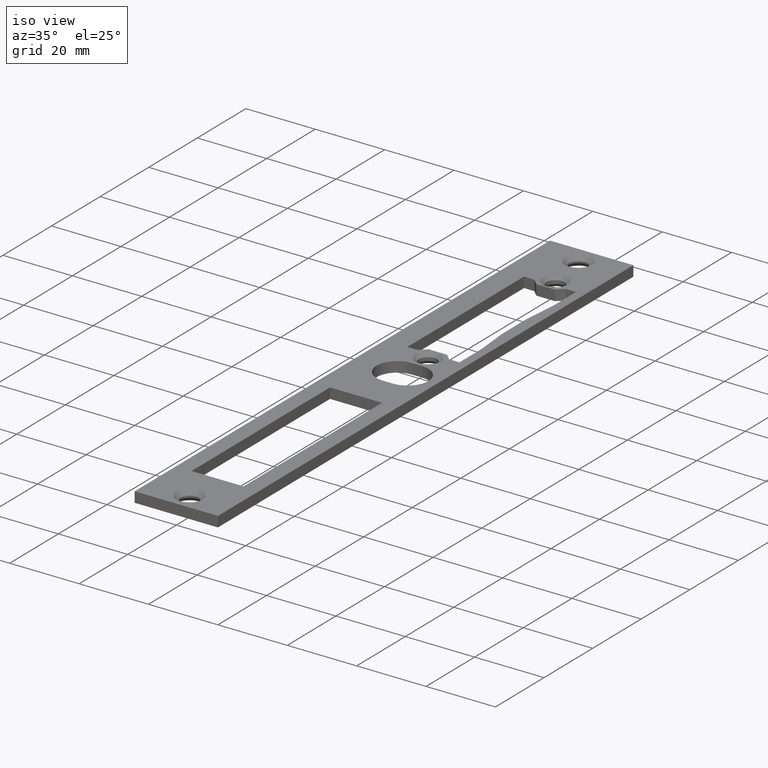
[diagram: clean part render]
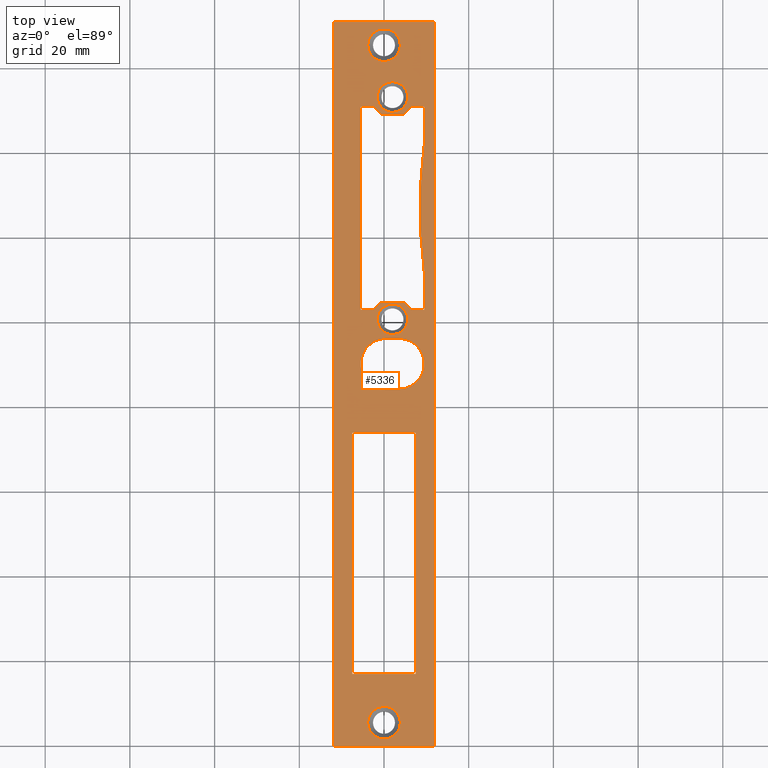
[diagram: tour spotlight — one face highlighted and labeled with its STEP entity id]
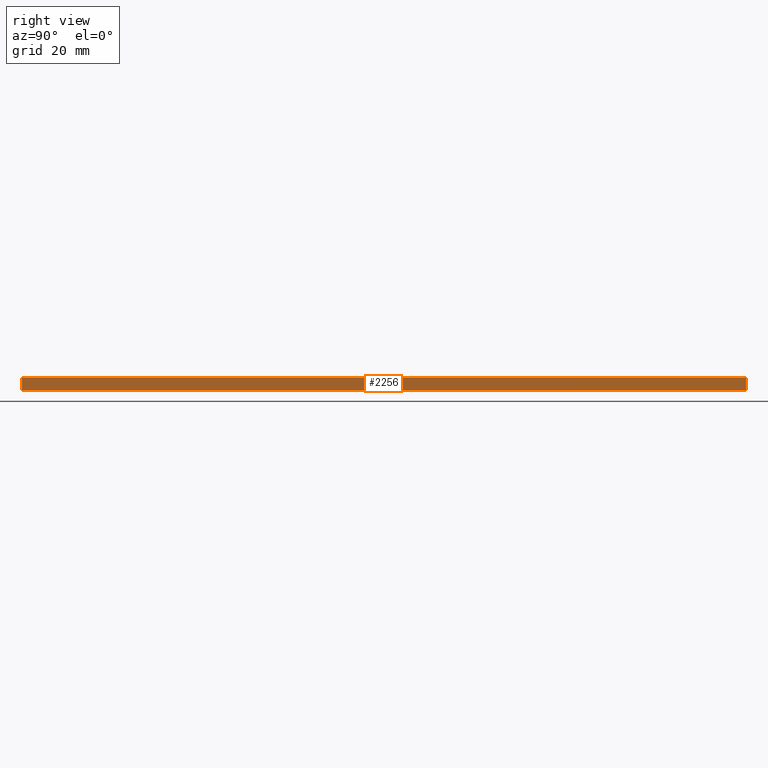
[diagram: tour spotlight — one face highlighted and labeled with its STEP entity id]
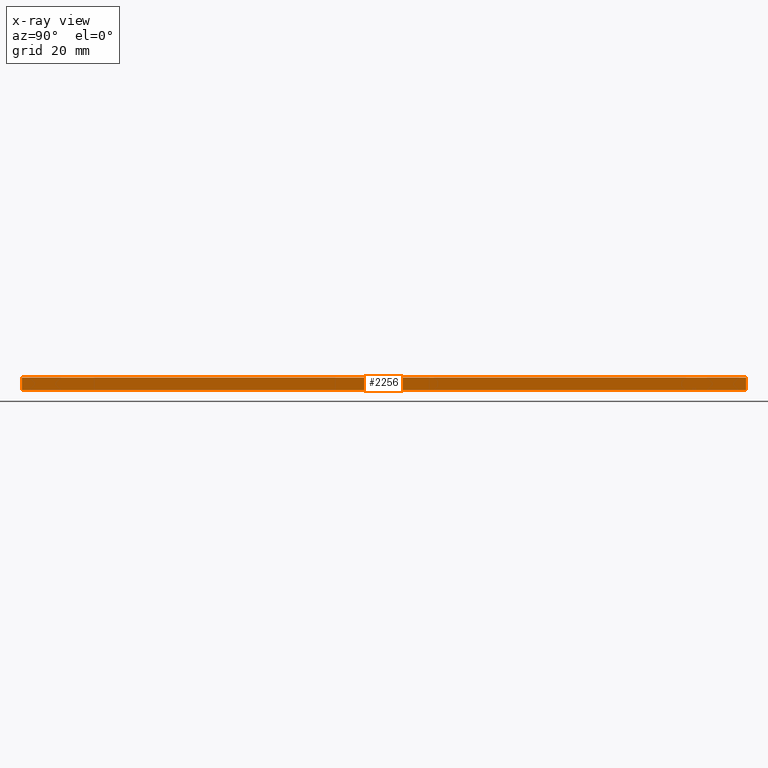
[diagram: x-ray of the same camera — body ghosted, this tour face saturated]
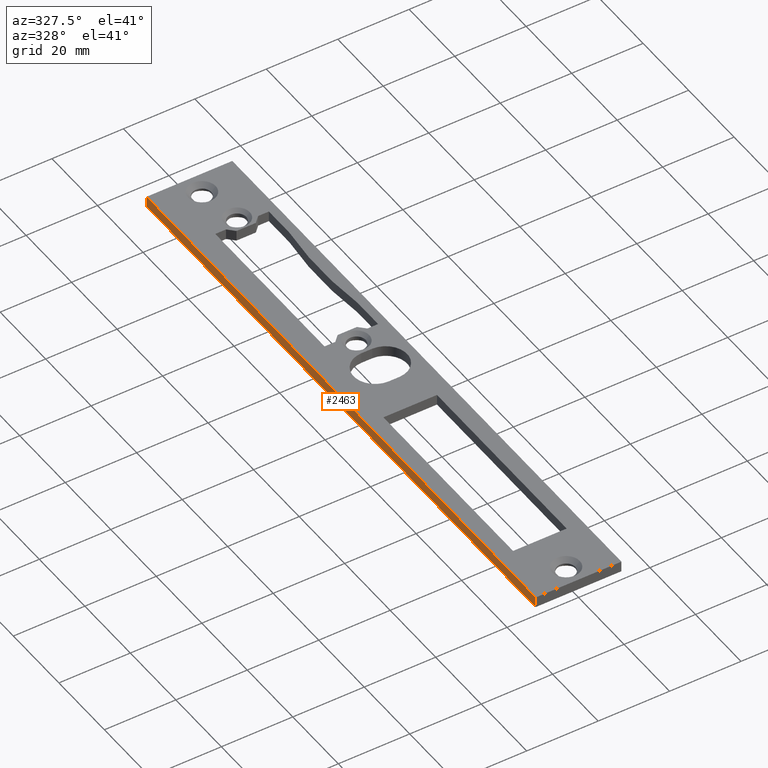
[diagram: tour spotlight — one face highlighted and labeled with its STEP entity id]
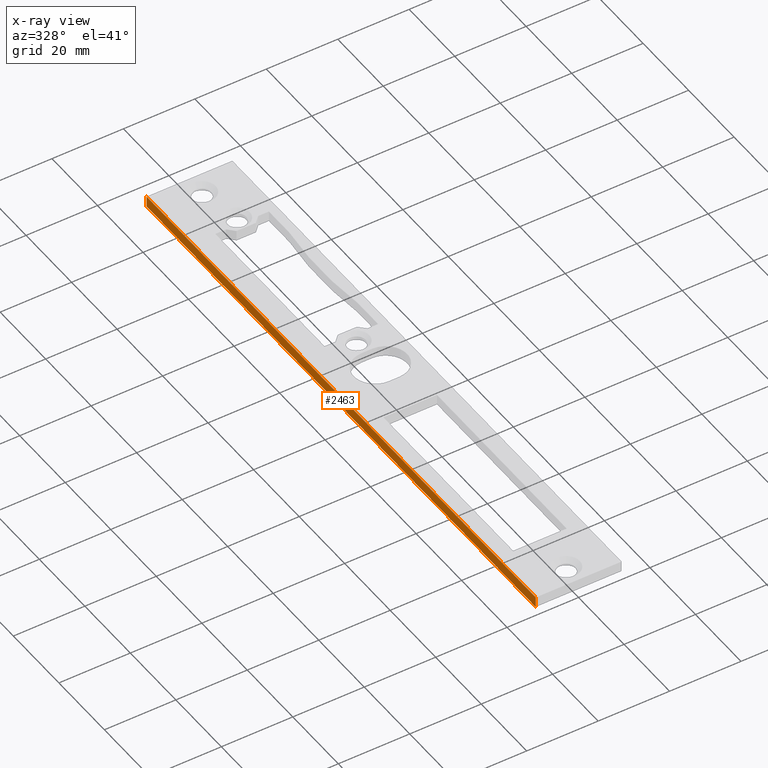
[diagram: x-ray of the same camera — body ghosted, this tour face saturated]
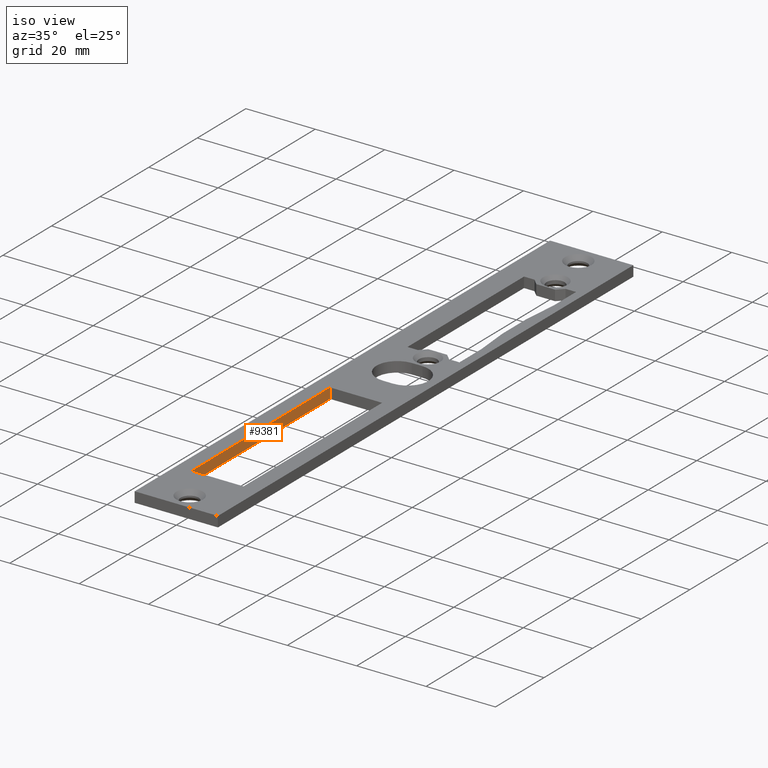
[diagram: tour spotlight — one face highlighted and labeled with its STEP entity id]
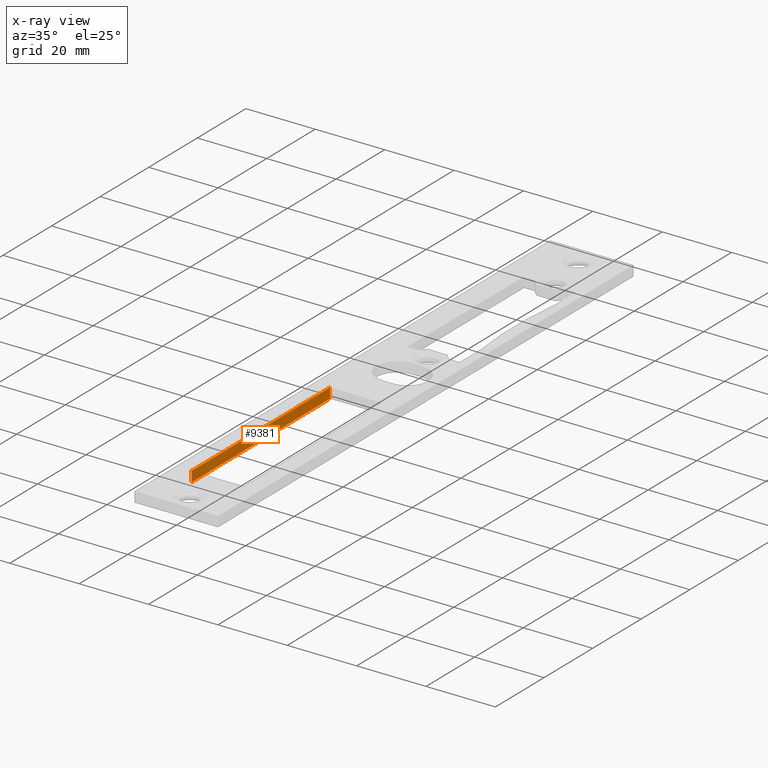
[diagram: x-ray of the same camera — body ghosted, this tour face saturated]
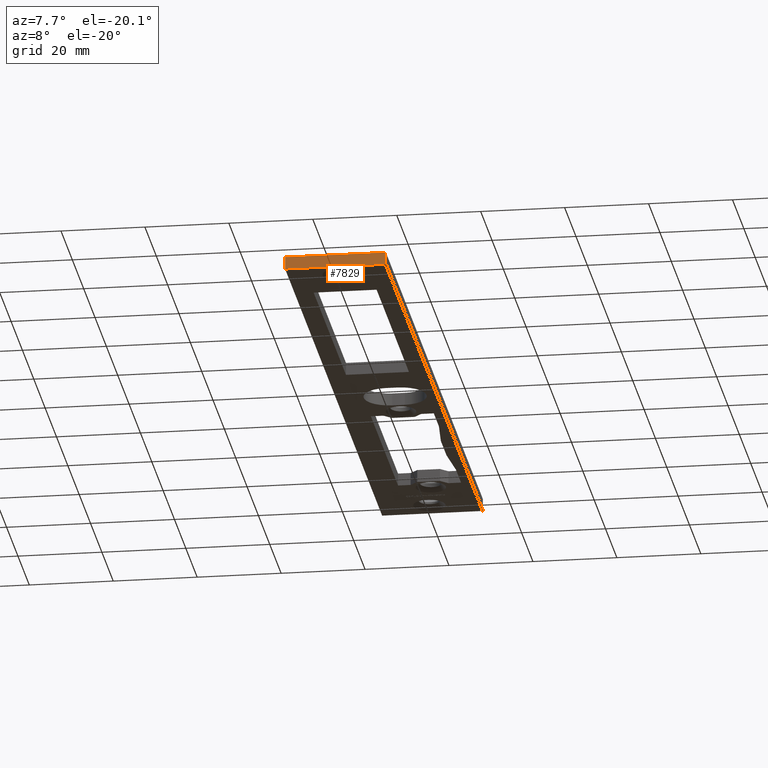
[diagram: tour spotlight — one face highlighted and labeled with its STEP entity id]
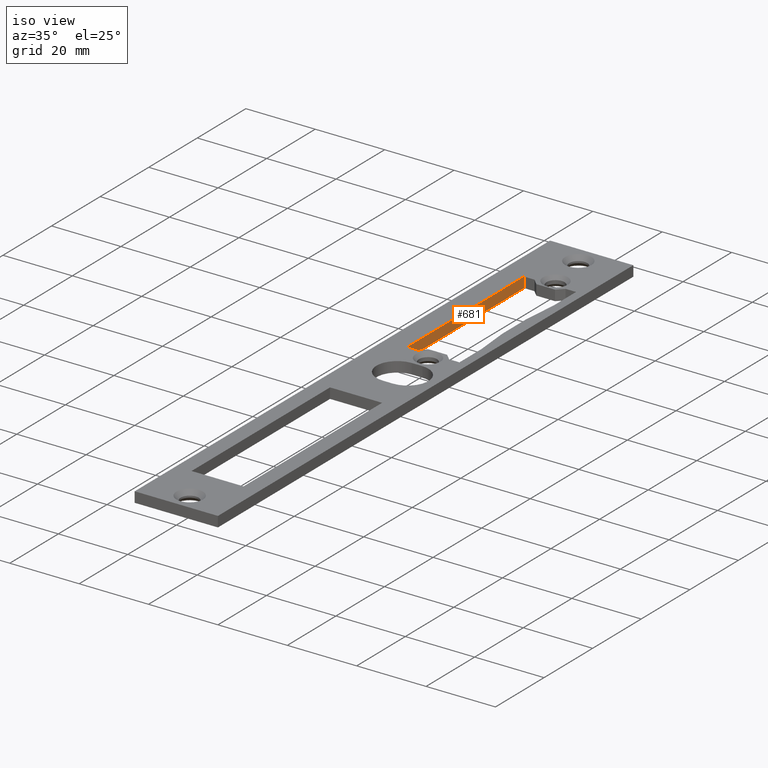
[diagram: tour spotlight — one face highlighted and labeled with its STEP entity id]
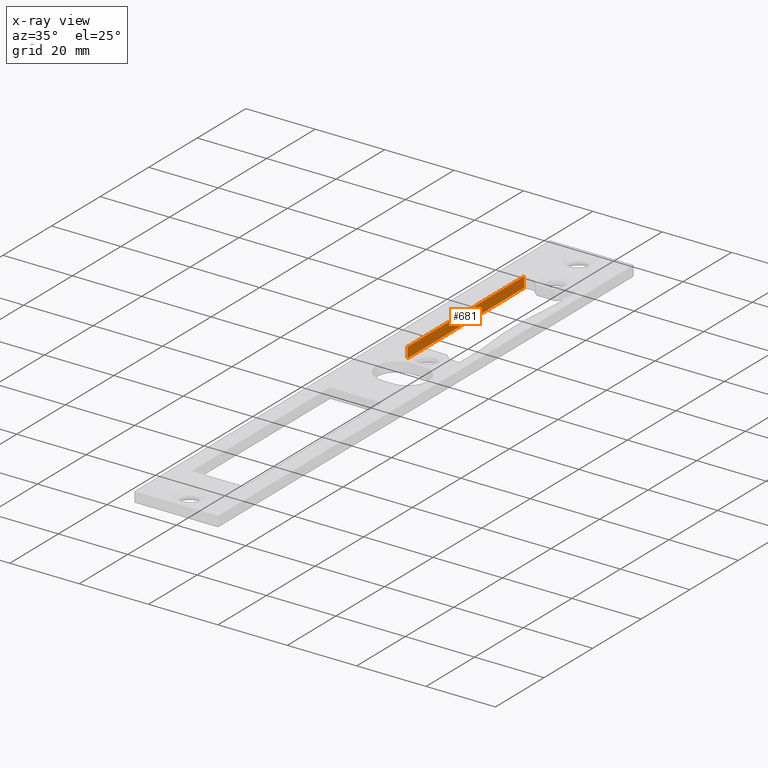
[diagram: x-ray of the same camera — body ghosted, this tour face saturated]
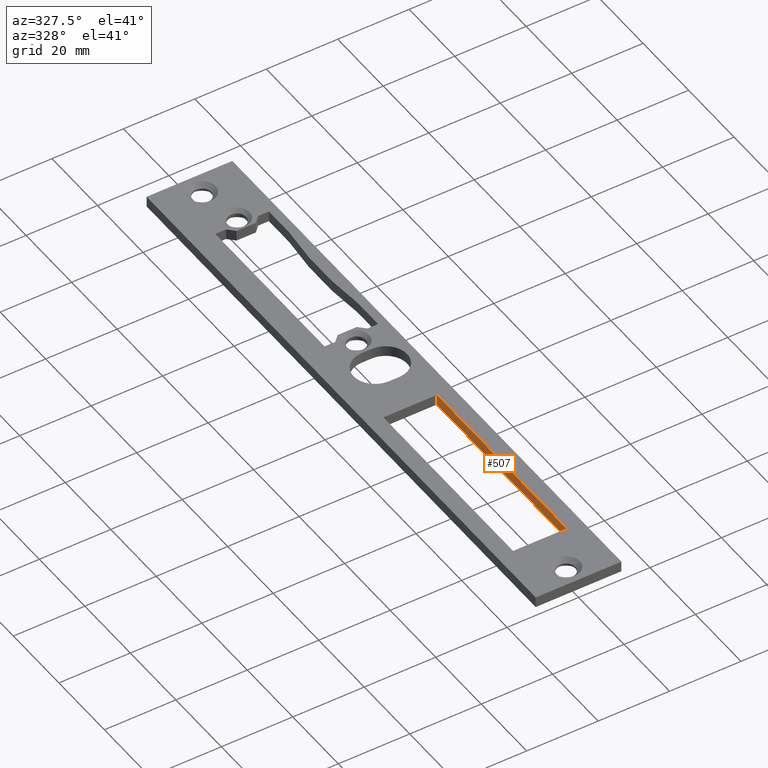
[diagram: tour spotlight — one face highlighted and labeled with its STEP entity id]
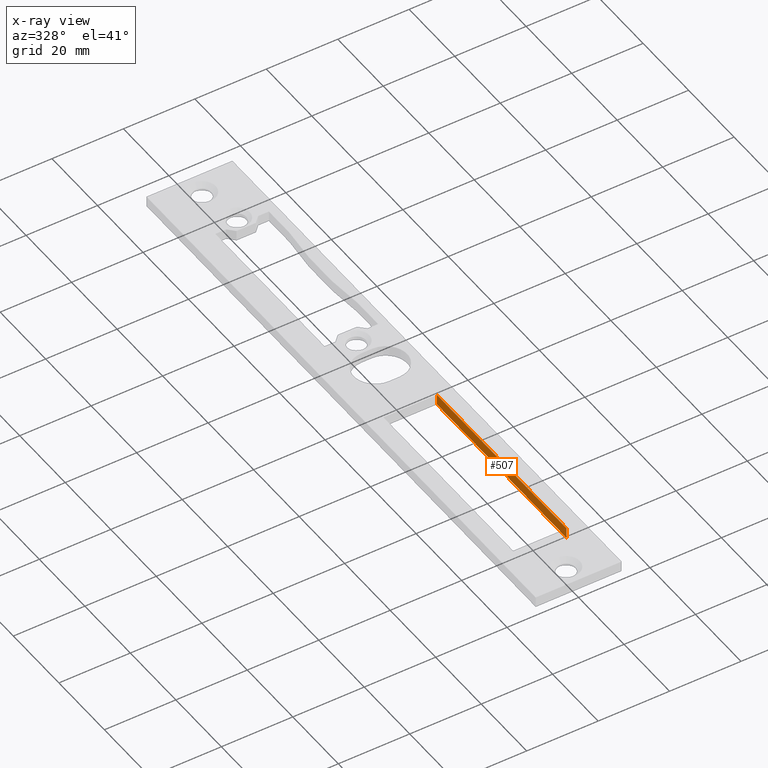
[diagram: x-ray of the same camera — body ghosted, this tour face saturated]
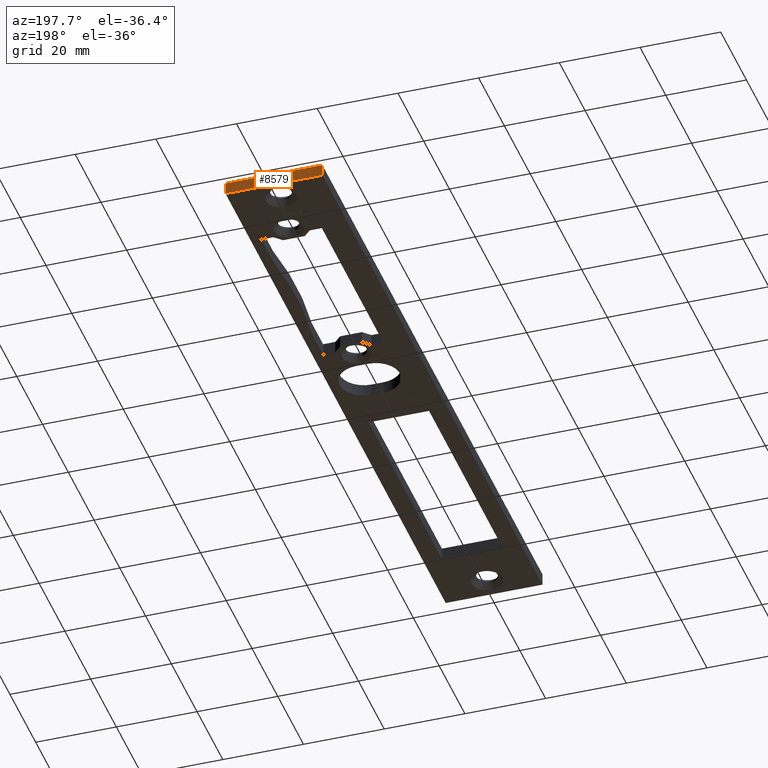
[diagram: tour spotlight — one face highlighted and labeled with its STEP entity id]
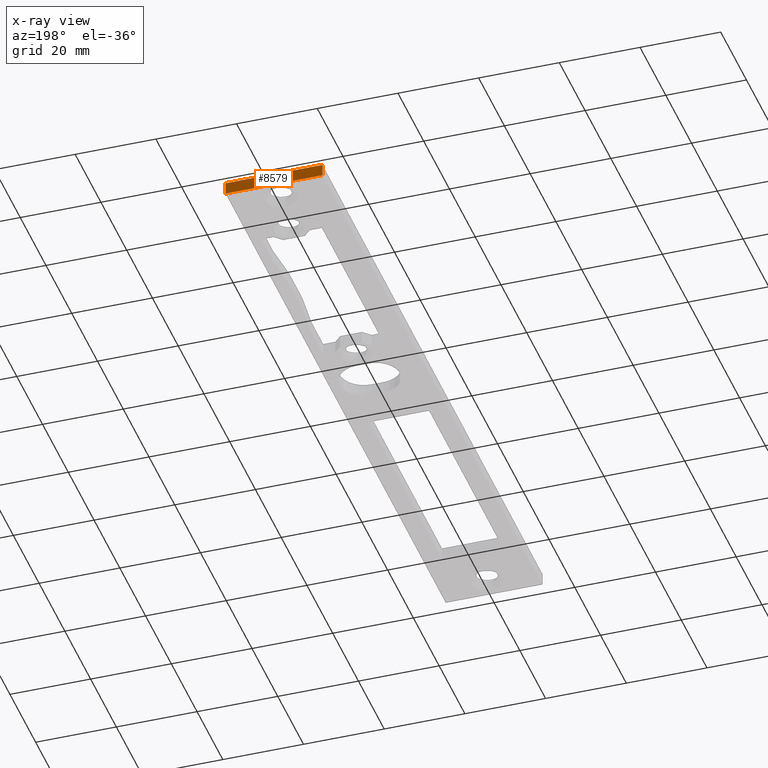
[diagram: x-ray of the same camera — body ghosted, this tour face saturated]
A machine part: a face-by-face anatomy tour. The part has 229 B-rep faces; the first image is the clean iso view, then the 8 largest visible faces are spotlighted one at a time (largest first), each with its STEP entity span.

Face 1 — top view, entity #5336. In plain terms, the highlighted planar face has unit normal (-0, 0, 1).
Definition (entity closure, byte-faithful):
#9 = DIRECTION ( 'NONE',  ( 0.000000000000000000, -0.000000000000000000, -1.000000000000000000 ) ) ;
#22 = AXIS2_PLACEMENT_3D ( 'NONE', #10505, #652, #9553 ) ;
#136 = CARTESIAN_POINT ( 'NONE',  ( -5.499999999999979572, 151.0000000000000284, 3.000000000000000888 ) ) ;
#141 = ORIENTED_EDGE ( 'NONE', *, *, #10026, .T. ) ;
#155 = DIRECTION ( 'NONE',  ( -0.000000000000000000, 0.000000000000000000, 1.000000000000000000 ) ) ;
#209 = VECTOR ( 'NONE', #10921, 1000.000000000000000 ) ;
#212 = LINE ( 'NONE', #4063, #762 ) ;
#229 = DIRECTION ( 'NONE',  ( 1.000000000000000000, 0.000000000000000000, 0.000000000000000000 ) ) ;
#294 = CARTESIAN_POINT ( 'NONE',  ( 0.000000000000000000, 104.7999999999999829, 3.000000000000000888 ) ) ;
#445 = CIRCLE ( 'NONE', #22, 5.999999999999991118 ) ;
#462 = ORIENTED_EDGE ( 'NONE', *, *, #5039, .F. ) ;
#474 = CIRCLE ( 'NONE', #7642, 3.599999999999992095 ) ;
#652 = DIRECTION ( 'NONE',  ( -0.000000000000000000, 0.000000000000000000, 1.000000000000000000 ) ) ;
#762 = VECTOR ( 'NONE', #2241, 1000.000000000000000 ) ;
#783 = LINE ( 'NONE', #1004, #1768 ) ;
#837 = CARTESIAN_POINT ( 'NONE',  ( 7.500000000000000000, 73.99999999999994316, 3.000000000000000888 ) ) ;
#893 = CARTESIAN_POINT ( 'NONE',  ( -72.25000000000000000, 72.24999999999940314, 3.000000000000000888 ) ) ;
#951 = VERTEX_POINT ( 'NONE', #1247 ) ;
#967 = CARTESIAN_POINT ( 'NONE',  ( 0.000000000000000000, 0.000000000000000000, 3.000000000000000888 ) ) ;
#983 = EDGE_CURVE ( 'NONE', #4644, #4921, #2457, .T. ) ;
#1004 = CARTESIAN_POINT ( 'NONE',  ( 0.000000000000000000, 96.25000000000000000, 3.000000000000000888 ) ) ;
#1017 = CARTESIAN_POINT ( 'NONE',  ( -2.499999999999979572, 151.0000000000000284, 3.000000000000000888 ) ) ;
#1027 = LINE ( 'NONE', #893, #7646 ) ;
#1082 = CARTESIAN_POINT ( 'NONE',  ( 9.500000000000019540, 111.9999999999999858, 3.000000000000000888 ) ) ;
#1112 = VERTEX_POINT ( 'NONE', #10268 ) ;
#1126 = ORIENTED_EDGE ( 'NONE', *, *, #4900, .F. ) ;
#1187 = EDGE_CURVE ( 'NONE', #7249, #9455, #8838, .T. ) ;
#1234 = CARTESIAN_POINT ( 'NONE',  ( -5.499999999999979572, 102.9999999999999858, 3.000000000000000888 ) ) ;
#1247 = CARTESIAN_POINT ( 'NONE',  ( -2.499999999999979572, 102.9999999999999716, 3.000000000000000888 ) ) ;
#1324 = CARTESIAN_POINT ( 'NONE',  ( 74.25000000000001421, 74.24999999999944578, 3.000000000000000888 ) ) ;
#1419 = DIRECTION ( 'NONE',  ( 0.000000000000000000, -0.000000000000000000, -1.000000000000000000 ) ) ;
#1430 = CARTESIAN_POINT ( 'NONE',  ( 3.850000000000025402, 5.500000000000000000, 3.000000000000000888 ) ) ;
#1492 = DIRECTION ( 'NONE',  ( -1.000000000000000000, 0.000000000000000000, 0.000000000000000000 ) ) ;
#1497 = EDGE_CURVE ( 'NONE', #9953, #1112, #783, .T. ) ;
#1591 = ORIENTED_EDGE ( 'NONE', *, *, #4746, .F. ) ;
#1725 = EDGE_CURVE ( 'NONE', #11207, #11121, #10664, .T. ) ;
#1737 = EDGE_CURVE ( 'NONE', #8115, #10535, #6703, .T. ) ;
#1768 = VECTOR ( 'NONE', #5365, 1000.000000000000000 ) ;
#1772 = ORIENTED_EDGE ( 'NONE', *, *, #10639, .T. ) ;
#1824 = EDGE_CURVE ( 'NONE', #5321, #9465, #4584, .T. ) ;
#1885 = CARTESIAN_POINT ( 'NONE',  ( 0.000000000000000000, 151.0000000000000284, 3.000000000000000888 ) ) ;
#1891 = DIRECTION ( 'NONE',  ( 1.000000000000000000, 0.000000000000000000, 0.000000000000000000 ) ) ;
#1907 = EDGE_LOOP ( 'NONE', ( #7168, #462, #6838, #3657, #5136, #3250, #11012, #6559, #10292, #9429, #7619, #3893, #11220, #9304 ) ) ;
#1958 = EDGE_CURVE ( 'NONE', #4269, #4269, #7678, .T. ) ;
#2046 = LINE ( 'NONE', #2075, #9525 ) ;
#2058 = VECTOR ( 'NONE', #7211, 1000.000000000000000 ) ;
#2075 = CARTESIAN_POINT ( 'NONE',  ( 0.000000000000000000, 149.2000000000000171, 3.000000000000000888 ) ) ;
#2118 = EDGE_LOOP ( 'NONE', ( #4045 ) ) ;
#2164 = LINE ( 'NONE', #4295, #8662 ) ;
#2193 = CARTESIAN_POINT ( 'NONE',  ( -12.00000000000003375, 171.0000000000000000, 3.000000000000000888 ) ) ;
#2241 = DIRECTION ( 'NONE',  ( -1.217349807703023841E-16, -1.000000000000000000, 0.000000000000000000 ) ) ;
#2385 = VERTEX_POINT ( 'NONE', #5875 ) ;
#2429 = DIRECTION ( 'NONE',  ( 1.000000000000000000, 0.000000000000000000, 0.000000000000000000 ) ) ;
#2457 = LINE ( 'NONE', #1324, #4128 ) ;
#2511 = ORIENTED_EDGE ( 'NONE', *, *, #3553, .F. ) ;
#2520 = EDGE_CURVE ( 'NONE', #2783, #11340, #8230, .T. ) ;
#2570 = EDGE_CURVE ( 'NONE', #10490, #9287, #4156, .T. ) ;
#2607 = VECTOR ( 'NONE', #10855, 1000.000000000000114 ) ;
#2624 = VECTOR ( 'NONE', #5317, 1000.000000000000000 ) ;
#2631 = FACE_BOUND ( 'NONE', #5664, .T. ) ;
#2738 = EDGE_CURVE ( 'NONE', #4921, #5321, #2164, .T. ) ;
#2759 = DIRECTION ( 'NONE',  ( -0.000000000000000000, 0.000000000000000000, 1.000000000000000000 ) ) ;
#2783 = VERTEX_POINT ( 'NONE', #9605 ) ;
#2896 = VERTEX_POINT ( 'NONE', #9839 ) ;
#2948 = CARTESIAN_POINT ( 'NONE',  ( 3.295974604355933479E-14, 5.500000000000000000, 3.000000000000000888 ) ) ;
#3035 = CIRCLE ( 'NONE', #11403, 5.999999999999991118 ) ;
#3042 = EDGE_LOOP ( 'NONE', ( #6616, #141, #6260, #6589 ) ) ;
#3074 = DIRECTION ( 'NONE',  ( -0.7071067811865447972, 0.7071067811865502373, 0.000000000000000000 ) ) ;
#3089 = EDGE_CURVE ( 'NONE', #6276, #2385, #11489, .T. ) ;
#3250 = ORIENTED_EDGE ( 'NONE', *, *, #9745, .F. ) ;
#3276 = VERTEX_POINT ( 'NONE', #11560 ) ;
#3436 = VECTOR ( 'NONE', #6976, 1000.000000000000000 ) ;
#3507 = CARTESIAN_POINT ( 'NONE',  ( 0.000000000000000000, 0.000000000000000000, 3.000000000000000888 ) ) ;
#3543 = CARTESIAN_POINT ( 'NONE',  ( 6.499999999999992006, 151.0000000000000284, 3.000000000000000888 ) ) ;
#3553 = EDGE_CURVE ( 'NONE', #9287, #3276, #212, .T. ) ;
#3579 = CARTESIAN_POINT ( 'NONE',  ( 0.5000000000000107692, 96.25000000000000000, 3.000000000000000888 ) ) ;
#3590 = CARTESIAN_POINT ( 'NONE',  ( -4.764707147349626450E-13, 102.9999999999999432, 3.000000000000000888 ) ) ;
#3657 = ORIENTED_EDGE ( 'NONE', *, *, #2738, .F. ) ;
#3679 = ORIENTED_EDGE ( 'NONE', *, *, #10030, .F. ) ;
#3749 = FACE_BOUND ( 'NONE', #10139, .T. ) ;
#3842 = EDGE_CURVE ( 'NONE', #9953, #4050, #3035, .T. ) ;
#3868 = CARTESIAN_POINT ( 'NONE',  ( 4.700000000000030376, 104.7999999999999829, 3.000000000000000888 ) ) ;
#3893 = ORIENTED_EDGE ( 'NONE', *, *, #2520, .F. ) ;
#3936 = EDGE_CURVE ( 'NONE', #5180, #6276, #6277, .T. ) ;
#4011 = ORIENTED_EDGE ( 'NONE', *, *, #4436, .T. ) ;
#4045 = ORIENTED_EDGE ( 'NONE', *, *, #7836, .T. ) ;
#4050 = VERTEX_POINT ( 'NONE', #8201 ) ;
#4063 = CARTESIAN_POINT ( 'NONE',  ( -7.500000000000007994, 9.130123557772689781E-16, 3.000000000000000888 ) ) ;
#4064 = CARTESIAN_POINT ( 'NONE',  ( -3.230922474006803213E-14, 165.5000000000000000, 3.000000000000000888 ) ) ;
#4066 = CARTESIAN_POINT ( 'NONE',  ( 3.500000000000031086, 84.25000000000001421, 3.000000000000000888 ) ) ;
#4128 = VECTOR ( 'NONE', #3074, 1000.000000000000227 ) ;
#4138 = LINE ( 'NONE', #5545, #2607 ) ;
#4147 = LINE ( 'NONE', #11689, #5127 ) ;
#4156 = LINE ( 'NONE', #10997, #5827 ) ;
#4269 = VERTEX_POINT ( 'NONE', #11284 ) ;
#4295 = CARTESIAN_POINT ( 'NONE',  ( 0.000000000000000000, 151.0000000000000284, 3.000000000000000888 ) ) ;
#4301 = VECTOR ( 'NONE', #5603, 1000.000000000000000 ) ;
#4339 = ORIENTED_EDGE ( 'NONE', *, *, #2570, .F. ) ;
#4408 = DIRECTION ( 'NONE',  ( -1.217349807703023841E-16, 1.000000000000000000, 0.000000000000000000 ) ) ;
#4436 = EDGE_CURVE ( 'NONE', #7362, #7362, #6874, .T. ) ;
#4444 = FACE_OUTER_BOUND ( 'NONE', #3042, .T. ) ;
#4584 = LINE ( 'NONE', #11028, #209 ) ;
#4643 = DIRECTION ( 'NONE',  ( 1.000000000000000000, 0.000000000000000000, 0.000000000000000000 ) ) ;
#4644 = VERTEX_POINT ( 'NONE', #7098 ) ;
#4645 = CARTESIAN_POINT ( 'NONE',  ( 121.5000000000008953, 127.0000000000000000, 3.000000000000000888 ) ) ;
#4656 = EDGE_CURVE ( 'NONE', #2385, #5361, #8123, .T. ) ;
#4746 = EDGE_CURVE ( 'NONE', #2896, #10490, #5170, .T. ) ;
#4763 = AXIS2_PLACEMENT_3D ( 'NONE', #4064, #1419, #5780 ) ;
#4787 = DIRECTION ( 'NONE',  ( 1.000000000000000000, 0.000000000000000000, 0.000000000000000000 ) ) ;
#4900 = EDGE_CURVE ( 'NONE', #4050, #10780, #9946, .T. ) ;
#4921 = VERTEX_POINT ( 'NONE', #1017 ) ;
#5019 = VECTOR ( 'NONE', #229, 1000.000000000000000 ) ;
#5039 = EDGE_CURVE ( 'NONE', #9465, #951, #9815, .T. ) ;
#5127 = VECTOR ( 'NONE', #6299, 1000.000000000000000 ) ;
#5136 = ORIENTED_EDGE ( 'NONE', *, *, #983, .F. ) ;
#5170 = LINE ( 'NONE', #7986, #10378 ) ;
#5180 = VERTEX_POINT ( 'NONE', #10716 ) ;
#5246 = VECTOR ( 'NONE', #6261, 1000.000000000000000 ) ;
#5317 = DIRECTION ( 'NONE',  ( -1.000000000000000000, 0.000000000000000000, 0.000000000000000000 ) ) ;
#5321 = VERTEX_POINT ( 'NONE', #136 ) ;
#5336 = ADVANCED_FACE ( 'NONE', ( #2631, #10944, #9802, #3749, #9513, #11217, #6845, #4444 ), #8200, .T. ) ;
#5361 = VERTEX_POINT ( 'NONE', #5452 ) ;
#5365 = DIRECTION ( 'NONE',  ( 1.000000000000000000, 0.000000000000000000, 0.000000000000000000 ) ) ;
#5452 = CARTESIAN_POINT ( 'NONE',  ( 12.00000000000001066, 0.000000000000000000, 3.000000000000000888 ) ) ;
#5473 = CARTESIAN_POINT ( 'NONE',  ( 2.000000000000019984, 100.7500000000000000, 3.000000000000000888 ) ) ;
#5487 = DIRECTION ( 'NONE',  ( 1.000000000000000000, 0.000000000000000000, 0.000000000000000000 ) ) ;
#5545 = CARTESIAN_POINT ( 'NONE',  ( 54.75000000000004263, 54.74999999999916866, 3.000000000000000888 ) ) ;
#5603 = DIRECTION ( 'NONE',  ( 1.318795625011607498E-16, -1.000000000000000000, 0.000000000000000000 ) ) ;
#5652 = DIRECTION ( 'NONE',  ( 0.7071067811865421326, 0.7071067811865530128, 0.000000000000000000 ) ) ;
#5653 = DIRECTION ( 'NONE',  ( 0.000000000000000000, 0.000000000000000000, 1.000000000000000000 ) ) ;
#5661 = VERTEX_POINT ( 'NONE', #1430 ) ;
#5664 = EDGE_LOOP ( 'NONE', ( #6684 ) ) ;
#5780 = DIRECTION ( 'NONE',  ( 1.000000000000000000, 0.000000000000000000, 0.000000000000000000 ) ) ;
#5804 = CARTESIAN_POINT ( 'NONE',  ( 9.500000000000019540, 102.9999999999999858, 3.000000000000000888 ) ) ;
#5806 = LINE ( 'NONE', #11425, #3436 ) ;
#5827 = VECTOR ( 'NONE', #6500, 1000.000000000000000 ) ;
#5875 = CARTESIAN_POINT ( 'NONE',  ( -12.00000000000001066, 0.000000000000000000, 3.000000000000000888 ) ) ;
#6099 = VERTEX_POINT ( 'NONE', #7884 ) ;
#6242 = VECTOR ( 'NONE', #5652, 999.9999999999998863 ) ;
#6260 = ORIENTED_EDGE ( 'NONE', *, *, #3936, .T. ) ;
#6261 = DIRECTION ( 'NONE',  ( 1.000000000000000000, 0.000000000000000000, 0.000000000000000000 ) ) ;
#6268 = CARTESIAN_POINT ( 'NONE',  ( -0.6999999999999971800, 104.7999999999999829, 3.000000000000000888 ) ) ;
#6276 = VERTEX_POINT ( 'NONE', #2193 ) ;
#6277 = LINE ( 'NONE', #6470, #9928 ) ;
#6299 = DIRECTION ( 'NONE',  ( 0.000000000000000000, 1.000000000000000000, -0.000000000000000000 ) ) ;
#6427 = CARTESIAN_POINT ( 'NONE',  ( 9.500000000000019540, 151.0000000000000284, 3.000000000000000888 ) ) ;
#6470 = CARTESIAN_POINT ( 'NONE',  ( 0.000000000000000000, 171.0000000000000000, 3.000000000000000888 ) ) ;
#6496 = DIRECTION ( 'NONE',  ( -1.000000000000000000, 0.000000000000000000, 0.000000000000000000 ) ) ;
#6500 = DIRECTION ( 'NONE',  ( -1.000000000000000000, 0.000000000000000000, 0.000000000000000000 ) ) ;
#6559 = ORIENTED_EDGE ( 'NONE', *, *, #1725, .F. ) ;
#6589 = ORIENTED_EDGE ( 'NONE', *, *, #3089, .T. ) ;
#6616 = ORIENTED_EDGE ( 'NONE', *, *, #4656, .T. ) ;
#6642 = EDGE_CURVE ( 'NONE', #8115, #11207, #4147, .T. ) ;
#6684 = ORIENTED_EDGE ( 'NONE', *, *, #1958, .T. ) ;
#6689 = VECTOR ( 'NONE', #10887, 1000.000000000000000 ) ;
#6695 = DIRECTION ( 'NONE',  ( 0.000000000000000000, -0.000000000000000000, -1.000000000000000000 ) ) ;
#6703 = CIRCLE ( 'NONE', #7031, 113.0000000000008669 ) ;
#6838 = ORIENTED_EDGE ( 'NONE', *, *, #1824, .F. ) ;
#6845 = FACE_BOUND ( 'NONE', #1907, .T. ) ;
#6874 = CIRCLE ( 'NONE', #4763, 3.849999999999992539 ) ;
#6976 = DIRECTION ( 'NONE',  ( 0.000000000000000000, 1.000000000000000000, -0.000000000000000000 ) ) ;
#7031 = AXIS2_PLACEMENT_3D ( 'NONE', #4645, #5653, #8333 ) ;
#7098 = CARTESIAN_POINT ( 'NONE',  ( -0.6999999999999922951, 149.2000000000000171, 3.000000000000000888 ) ) ;
#7168 = ORIENTED_EDGE ( 'NONE', *, *, #8533, .F. ) ;
#7175 = CARTESIAN_POINT ( 'NONE',  ( 0.000000000000000000, 17.00000000000000000, 3.000000000000000888 ) ) ;
#7191 = CARTESIAN_POINT ( 'NONE',  ( 9.500000000000014211, 142.0000000000000284, 3.000000000000000888 ) ) ;
#7211 = DIRECTION ( 'NONE',  ( 1.000000000000000000, 0.000000000000000000, 0.000000000000000000 ) ) ;
#7229 = VECTOR ( 'NONE', #9948, 1000.000000000000000 ) ;
#7249 = VERTEX_POINT ( 'NONE', #6268 ) ;
#7362 = VERTEX_POINT ( 'NONE', #9506 ) ;
#7367 = LINE ( 'NONE', #8373, #6242 ) ;
#7610 = AXIS2_PLACEMENT_3D ( 'NONE', #8492, #6695, #4787 ) ;
#7619 = ORIENTED_EDGE ( 'NONE', *, *, #11473, .F. ) ;
#7636 = LINE ( 'NONE', #7175, #5246 ) ;
#7642 = AXIS2_PLACEMENT_3D ( 'NONE', #5473, #9, #1891 ) ;
#7646 = VECTOR ( 'NONE', #10149, 1000.000000000000114 ) ;
#7678 = CIRCLE ( 'NONE', #7610, 3.600000000000005862 ) ;
#7701 = CARTESIAN_POINT ( 'NONE',  ( -7.500000000000000000, 73.99999999999994316, 3.000000000000000888 ) ) ;
#7836 = EDGE_CURVE ( 'NONE', #5661, #5661, #10467, .T. ) ;
#7884 = CARTESIAN_POINT ( 'NONE',  ( 5.600000000000012079, 100.7500000000000000, 3.000000000000000888 ) ) ;
#7986 = CARTESIAN_POINT ( 'NONE',  ( 7.500000000000007994, 9.130123557772689781E-16, 3.000000000000000888 ) ) ;
#8115 = VERTEX_POINT ( 'NONE', #7191 ) ;
#8123 = LINE ( 'NONE', #3507, #2058 ) ;
#8200 = PLANE ( 'NONE',  #8298 ) ;
#8201 = CARTESIAN_POINT ( 'NONE',  ( 0.5000000000000089928, 84.25000000000001421, 3.000000000000000888 ) ) ;
#8230 = LINE ( 'NONE', #3590, #6689 ) ;
#8248 = DIRECTION ( 'NONE',  ( 1.000000000000000000, 0.000000000000000000, 0.000000000000000000 ) ) ;
#8298 = AXIS2_PLACEMENT_3D ( 'NONE', #967, #2759, #8248 ) ;
#8333 = DIRECTION ( 'NONE',  ( 1.000000000000000000, 0.000000000000000000, 0.000000000000000000 ) ) ;
#8373 = CARTESIAN_POINT ( 'NONE',  ( -52.74999999999999289, 52.74999999999918998, 3.000000000000000888 ) ) ;
#8400 = ORIENTED_EDGE ( 'NONE', *, *, #3842, .F. ) ;
#8420 = DIRECTION ( 'NONE',  ( -1.000000000000000000, 0.000000000000000000, 0.000000000000000000 ) ) ;
#8492 = CARTESIAN_POINT ( 'NONE',  ( 2.000000000000019984, 153.2500000000000000, 3.000000000000000888 ) ) ;
#8524 = EDGE_CURVE ( 'NONE', #11121, #11288, #1027, .T. ) ;
#8533 = EDGE_CURVE ( 'NONE', #951, #7249, #7367, .T. ) ;
#8662 = VECTOR ( 'NONE', #1492, 1000.000000000000000 ) ;
#8727 = EDGE_LOOP ( 'NONE', ( #10652, #1126, #8400, #11391 ) ) ;
#8782 = LINE ( 'NONE', #10790, #7229 ) ;
#8835 = CARTESIAN_POINT ( 'NONE',  ( 4.764707147349627460E-13, 102.9999999999999574, 3.000000000000000888 ) ) ;
#8838 = LINE ( 'NONE', #294, #11647 ) ;
#9087 = DIRECTION ( 'NONE',  ( 0.000000000000000000, -0.000000000000000000, -1.000000000000000000 ) ) ;
#9208 = EDGE_CURVE ( 'NONE', #10780, #1112, #445, .T. ) ;
#9270 = CARTESIAN_POINT ( 'NONE',  ( -12.00000000000001066, -1.582554750013930279E-15, 3.000000000000000888 ) ) ;
#9287 = VERTEX_POINT ( 'NONE', #7701 ) ;
#9304 = ORIENTED_EDGE ( 'NONE', *, *, #1187, .F. ) ;
#9429 = ORIENTED_EDGE ( 'NONE', *, *, #1737, .T. ) ;
#9455 = VERTEX_POINT ( 'NONE', #3868 ) ;
#9465 = VERTEX_POINT ( 'NONE', #1234 ) ;
#9506 = CARTESIAN_POINT ( 'NONE',  ( 3.849999999999960121, 165.5000000000000000, 3.000000000000000888 ) ) ;
#9513 = FACE_BOUND ( 'NONE', #8727, .T. ) ;
#9518 = CARTESIAN_POINT ( 'NONE',  ( 4.700000000000036593, 149.2000000000000171, 3.000000000000000888 ) ) ;
#9525 = VECTOR ( 'NONE', #8420, 1000.000000000000000 ) ;
#9553 = DIRECTION ( 'NONE',  ( 1.000000000000000000, 0.000000000000000000, 0.000000000000000000 ) ) ;
#9605 = CARTESIAN_POINT ( 'NONE',  ( 6.500000000000017764, 102.9999999999999716, 3.000000000000000888 ) ) ;
#9745 = EDGE_CURVE ( 'NONE', #11288, #4644, #2046, .T. ) ;
#9802 = FACE_BOUND ( 'NONE', #2118, .T. ) ;
#9815 = LINE ( 'NONE', #8835, #11371 ) ;
#9839 = CARTESIAN_POINT ( 'NONE',  ( 7.500000000000007105, 17.00000000000000000, 3.000000000000000888 ) ) ;
#9928 = VECTOR ( 'NONE', #6496, 1000.000000000000000 ) ;
#9940 = AXIS2_PLACEMENT_3D ( 'NONE', #2948, #9087, #5487 ) ;
#9946 = LINE ( 'NONE', #10990, #5019 ) ;
#9948 = DIRECTION ( 'NONE',  ( 0.000000000000000000, 1.000000000000000000, -0.000000000000000000 ) ) ;
#9953 = VERTEX_POINT ( 'NONE', #3579 ) ;
#10026 = EDGE_CURVE ( 'NONE', #5361, #5180, #5806, .T. ) ;
#10030 = EDGE_CURVE ( 'NONE', #3276, #2896, #7636, .T. ) ;
#10039 = CARTESIAN_POINT ( 'NONE',  ( 0.5000000000000107692, 90.25000000000001421, 3.000000000000000888 ) ) ;
#10139 = EDGE_LOOP ( 'NONE', ( #4011 ) ) ;
#10149 = DIRECTION ( 'NONE',  ( -0.7071067811865445751, -0.7071067811865504593, 0.000000000000000000 ) ) ;
#10268 = CARTESIAN_POINT ( 'NONE',  ( 3.500000000000029310, 96.25000000000000000, 3.000000000000000888 ) ) ;
#10292 = ORIENTED_EDGE ( 'NONE', *, *, #6642, .F. ) ;
#10378 = VECTOR ( 'NONE', #4408, 1000.000000000000000 ) ;
#10467 = CIRCLE ( 'NONE', #9940, 3.849999999999992539 ) ;
#10490 = VERTEX_POINT ( 'NONE', #837 ) ;
#10505 = CARTESIAN_POINT ( 'NONE',  ( 3.500000000000027534, 90.25000000000001421, 3.000000000000000888 ) ) ;
#10535 = VERTEX_POINT ( 'NONE', #1082 ) ;
#10634 = DIRECTION ( 'NONE',  ( 1.000000000000000000, -4.625929269271485322E-15, 0.000000000000000000 ) ) ;
#10639 = EDGE_CURVE ( 'NONE', #6099, #6099, #474, .T. ) ;
#10652 = ORIENTED_EDGE ( 'NONE', *, *, #9208, .F. ) ;
#10664 = LINE ( 'NONE', #1885, #2624 ) ;
#10665 = EDGE_CURVE ( 'NONE', #9455, #2783, #4138, .T. ) ;
#10716 = CARTESIAN_POINT ( 'NONE',  ( 12.00000000000001066, 171.0000000000000000, 3.000000000000000888 ) ) ;
#10780 = VERTEX_POINT ( 'NONE', #4066 ) ;
#10790 = CARTESIAN_POINT ( 'NONE',  ( 9.500000000000019540, 0.000000000000000000, 3.000000000000000888 ) ) ;
#10855 = DIRECTION ( 'NONE',  ( 0.7071067811865417996, -0.7071067811865531239, 0.000000000000000000 ) ) ;
#10887 = DIRECTION ( 'NONE',  ( 1.000000000000000000, 4.625929269271484533E-15, 0.000000000000000000 ) ) ;
#10921 = DIRECTION ( 'NONE',  ( 0.000000000000000000, -1.000000000000000000, 0.000000000000000000 ) ) ;
#10944 = FACE_BOUND ( 'NONE', #11127, .T. ) ;
#10990 = CARTESIAN_POINT ( 'NONE',  ( 0.000000000000000000, 84.25000000000001421, 3.000000000000000888 ) ) ;
#10997 = CARTESIAN_POINT ( 'NONE',  ( 0.000000000000000000, 73.99999999999994316, 3.000000000000000888 ) ) ;
#11012 = ORIENTED_EDGE ( 'NONE', *, *, #8524, .F. ) ;
#11028 = CARTESIAN_POINT ( 'NONE',  ( -5.499999999999979572, 0.000000000000000000, 3.000000000000000888 ) ) ;
#11047 = EDGE_LOOP ( 'NONE', ( #2511, #4339, #1591, #3679 ) ) ;
#11121 = VERTEX_POINT ( 'NONE', #3543 ) ;
#11127 = EDGE_LOOP ( 'NONE', ( #1772 ) ) ;
#11207 = VERTEX_POINT ( 'NONE', #6427 ) ;
#11217 = FACE_BOUND ( 'NONE', #11047, .T. ) ;
#11220 = ORIENTED_EDGE ( 'NONE', *, *, #10665, .F. ) ;
#11284 = CARTESIAN_POINT ( 'NONE',  ( 5.600000000000026290, 153.2500000000000000, 3.000000000000000888 ) ) ;
#11288 = VERTEX_POINT ( 'NONE', #9518 ) ;
#11340 = VERTEX_POINT ( 'NONE', #5804 ) ;
#11371 = VECTOR ( 'NONE', #10634, 1000.000000000000000 ) ;
#11391 = ORIENTED_EDGE ( 'NONE', *, *, #1497, .T. ) ;
#11403 = AXIS2_PLACEMENT_3D ( 'NONE', #10039, #155, #4643 ) ;
#11425 = CARTESIAN_POINT ( 'NONE',  ( 12.00000000000001066, 0.000000000000000000, 3.000000000000000888 ) ) ;
#11473 = EDGE_CURVE ( 'NONE', #11340, #10535, #8782, .T. ) ;
#11489 = LINE ( 'NONE', #9270, #4301 ) ;
#11560 = CARTESIAN_POINT ( 'NONE',  ( -7.500000000000007105, 17.00000000000000000, 3.000000000000000888 ) ) ;
#11647 = VECTOR ( 'NONE', #2429, 1000.000000000000000 ) ;
#11689 = CARTESIAN_POINT ( 'NONE',  ( 9.500000000000019540, 0.000000000000000000, 3.000000000000000888 ) ) ;

Face 2 — right view, entity #2256. An x-ray twin of the same camera follows (body ghosted, this face saturated) — the face is partly hidden behind the body. In plain terms, the highlighted planar face has unit normal (-1, 0, 0).
Definition (entity closure, byte-faithful):
#125 = DIRECTION ( 'NONE',  ( -0.000000000000000000, -0.000000000000000000, -1.000000000000000000 ) ) ;
#476 = CARTESIAN_POINT ( 'NONE',  ( 12.00000000000001066, 0.000000000000000000, 3.000000000000000888 ) ) ;
#664 = DIRECTION ( 'NONE',  ( 0.000000000000000000, 1.000000000000000000, -0.000000000000000000 ) ) ;
#944 = ORIENTED_EDGE ( 'NONE', *, *, #6578, .T. ) ;
#1035 = VECTOR ( 'NONE', #664, 1000.000000000000000 ) ;
#1303 = DIRECTION ( 'NONE',  ( 0.000000000000000000, 0.000000000000000000, 1.000000000000000000 ) ) ;
#1509 = AXIS2_PLACEMENT_3D ( 'NONE', #476, #2332, #1303 ) ;
#2256 = ADVANCED_FACE ( 'NONE', ( #8521 ), #5872, .F. ) ;
#2265 = ORIENTED_EDGE ( 'NONE', *, *, #5894, .T. ) ;
#2332 = DIRECTION ( 'NONE',  ( -1.000000000000000000, 0.000000000000000000, 0.000000000000000000 ) ) ;
#2540 = CARTESIAN_POINT ( 'NONE',  ( 12.00000000000001066, 171.0000000000000000, 3.000000000000000888 ) ) ;
#2648 = CARTESIAN_POINT ( 'NONE',  ( 12.00000000000001066, 0.000000000000000000, 0.000000000000000000 ) ) ;
#2911 = VECTOR ( 'NONE', #125, 1000.000000000000000 ) ;
#3436 = VECTOR ( 'NONE', #6976, 1000.000000000000000 ) ;
#3710 = LINE ( 'NONE', #2540, #8209 ) ;
#5180 = VERTEX_POINT ( 'NONE', #10716 ) ;
#5201 = DIRECTION ( 'NONE',  ( -0.000000000000000000, -0.000000000000000000, -1.000000000000000000 ) ) ;
#5274 = CARTESIAN_POINT ( 'NONE',  ( 12.00000000000001066, 171.0000000000000000, 0.000000000000000000 ) ) ;
#5361 = VERTEX_POINT ( 'NONE', #5452 ) ;
#5452 = CARTESIAN_POINT ( 'NONE',  ( 12.00000000000001066, 0.000000000000000000, 3.000000000000000888 ) ) ;
#5806 = LINE ( 'NONE', #11425, #3436 ) ;
#5872 = PLANE ( 'NONE',  #1509 ) ;
#5894 = EDGE_CURVE ( 'NONE', #5361, #6731, #10365, .T. ) ;
#6578 = EDGE_CURVE ( 'NONE', #6731, #7284, #11052, .T. ) ;
#6731 = VERTEX_POINT ( 'NONE', #10216 ) ;
#6976 = DIRECTION ( 'NONE',  ( 0.000000000000000000, 1.000000000000000000, -0.000000000000000000 ) ) ;
#7284 = VERTEX_POINT ( 'NONE', #5274 ) ;
#8209 = VECTOR ( 'NONE', #5201, 1000.000000000000000 ) ;
#8439 = EDGE_CURVE ( 'NONE', #5180, #7284, #3710, .T. ) ;
#8521 = FACE_OUTER_BOUND ( 'NONE', #8750, .T. ) ;
#8750 = EDGE_LOOP ( 'NONE', ( #944, #9246, #9035, #2265 ) ) ;
#9035 = ORIENTED_EDGE ( 'NONE', *, *, #10026, .F. ) ;
#9246 = ORIENTED_EDGE ( 'NONE', *, *, #8439, .F. ) ;
#10026 = EDGE_CURVE ( 'NONE', #5361, #5180, #5806, .T. ) ;
#10216 = CARTESIAN_POINT ( 'NONE',  ( 12.00000000000001066, 0.000000000000000000, 0.000000000000000000 ) ) ;
#10365 = LINE ( 'NONE', #10928, #2911 ) ;
#10716 = CARTESIAN_POINT ( 'NONE',  ( 12.00000000000001066, 171.0000000000000000, 3.000000000000000888 ) ) ;
#10928 = CARTESIAN_POINT ( 'NONE',  ( 12.00000000000001066, 0.000000000000000000, 3.000000000000000888 ) ) ;
#11052 = LINE ( 'NONE', #2648, #1035 ) ;
#11425 = CARTESIAN_POINT ( 'NONE',  ( 12.00000000000001066, 0.000000000000000000, 3.000000000000000888 ) ) ;

Face 3 — auxiliary view, entity #2463. An x-ray twin of the same camera follows (body ghosted, this face saturated) — the face is partly hidden behind the body. In plain terms, the highlighted planar face has unit normal (1, 0, -0).
Definition (entity closure, byte-faithful):
#6 = DIRECTION ( 'NONE',  ( -1.318795625011607744E-16, 1.000000000000000000, 0.000000000000000000 ) ) ;
#1326 = FACE_OUTER_BOUND ( 'NONE', #6666, .T. ) ;
#1358 = VECTOR ( 'NONE', #4255, 1000.000000000000000 ) ;
#1361 = EDGE_CURVE ( 'NONE', #6276, #2608, #8382, .T. ) ;
#1610 = ORIENTED_EDGE ( 'NONE', *, *, #1361, .T. ) ;
#2193 = CARTESIAN_POINT ( 'NONE',  ( -12.00000000000003375, 171.0000000000000000, 3.000000000000000888 ) ) ;
#2385 = VERTEX_POINT ( 'NONE', #5875 ) ;
#2463 = ADVANCED_FACE ( 'NONE', ( #1326 ), #5320, .F. ) ;
#2608 = VERTEX_POINT ( 'NONE', #7633 ) ;
#3089 = EDGE_CURVE ( 'NONE', #6276, #2385, #11489, .T. ) ;
#3199 = CARTESIAN_POINT ( 'NONE',  ( -12.00000000000001066, -1.582554750013930279E-15, 0.000000000000000000 ) ) ;
#3240 = ORIENTED_EDGE ( 'NONE', *, *, #9973, .T. ) ;
#4019 = ORIENTED_EDGE ( 'NONE', *, *, #8214, .F. ) ;
#4255 = DIRECTION ( 'NONE',  ( 1.318795625011607498E-16, -1.000000000000000000, 0.000000000000000000 ) ) ;
#4301 = VECTOR ( 'NONE', #5603, 1000.000000000000000 ) ;
#4386 = VERTEX_POINT ( 'NONE', #7415 ) ;
#4688 = DIRECTION ( 'NONE',  ( -0.000000000000000000, -0.000000000000000000, -1.000000000000000000 ) ) ;
#5320 = PLANE ( 'NONE',  #5951 ) ;
#5350 = CARTESIAN_POINT ( 'NONE',  ( -12.00000000000001066, -1.582554750013930279E-15, 3.000000000000000888 ) ) ;
#5603 = DIRECTION ( 'NONE',  ( 1.318795625011607498E-16, -1.000000000000000000, 0.000000000000000000 ) ) ;
#5875 = CARTESIAN_POINT ( 'NONE',  ( -12.00000000000001066, 0.000000000000000000, 3.000000000000000888 ) ) ;
#5951 = AXIS2_PLACEMENT_3D ( 'NONE', #5350, #9065, #6 ) ;
#6276 = VERTEX_POINT ( 'NONE', #2193 ) ;
#6442 = VECTOR ( 'NONE', #8860, 1000.000000000000000 ) ;
#6666 = EDGE_LOOP ( 'NONE', ( #3240, #4019, #10838, #1610 ) ) ;
#7415 = CARTESIAN_POINT ( 'NONE',  ( -12.00000000000001066, 0.000000000000000000, 0.000000000000000000 ) ) ;
#7633 = CARTESIAN_POINT ( 'NONE',  ( -12.00000000000003375, 171.0000000000000000, 0.000000000000000000 ) ) ;
#8214 = EDGE_CURVE ( 'NONE', #2385, #4386, #10324, .T. ) ;
#8280 = CARTESIAN_POINT ( 'NONE',  ( -12.00000000000001066, 0.000000000000000000, 3.000000000000000888 ) ) ;
#8382 = LINE ( 'NONE', #8772, #6442 ) ;
#8772 = CARTESIAN_POINT ( 'NONE',  ( -12.00000000000003375, 171.0000000000000000, 3.000000000000000888 ) ) ;
#8860 = DIRECTION ( 'NONE',  ( -0.000000000000000000, -0.000000000000000000, -1.000000000000000000 ) ) ;
#9065 = DIRECTION ( 'NONE',  ( 1.000000000000000000, 1.318795625011607744E-16, -0.000000000000000000 ) ) ;
#9270 = CARTESIAN_POINT ( 'NONE',  ( -12.00000000000001066, -1.582554750013930279E-15, 3.000000000000000888 ) ) ;
#9973 = EDGE_CURVE ( 'NONE', #2608, #4386, #11652, .T. ) ;
#10324 = LINE ( 'NONE', #8280, #11317 ) ;
#10838 = ORIENTED_EDGE ( 'NONE', *, *, #3089, .F. ) ;
#11317 = VECTOR ( 'NONE', #4688, 1000.000000000000000 ) ;
#11489 = LINE ( 'NONE', #9270, #4301 ) ;
#11652 = LINE ( 'NONE', #3199, #1358 ) ;

Face 4 — iso view, entity #9381. An x-ray twin of the same camera follows (body ghosted, this face saturated) — the face is partly hidden behind the body. In plain terms, the highlighted planar face has unit normal (1, -0, 0).
Definition (entity closure, byte-faithful):
#212 = LINE ( 'NONE', #4063, #762 ) ;
#351 = LINE ( 'NONE', #3974, #8241 ) ;
#493 = VECTOR ( 'NONE', #10279, 1000.000000000000000 ) ;
#641 = EDGE_LOOP ( 'NONE', ( #7791, #1519, #6231, #2551 ) ) ;
#762 = VECTOR ( 'NONE', #2241, 1000.000000000000000 ) ;
#1208 = DIRECTION ( 'NONE',  ( -0.000000000000000000, -0.000000000000000000, -1.000000000000000000 ) ) ;
#1219 = DIRECTION ( 'NONE',  ( -1.217349807703023841E-16, -1.000000000000000000, 0.000000000000000000 ) ) ;
#1258 = CARTESIAN_POINT ( 'NONE',  ( -7.500000000000000000, 73.99999999999994316, 3.000000000000000888 ) ) ;
#1519 = ORIENTED_EDGE ( 'NONE', *, *, #3494, .F. ) ;
#1744 = PLANE ( 'NONE',  #4094 ) ;
#1947 = EDGE_CURVE ( 'NONE', #9739, #5961, #351, .T. ) ;
#2241 = DIRECTION ( 'NONE',  ( -1.217349807703023841E-16, -1.000000000000000000, 0.000000000000000000 ) ) ;
#2551 = ORIENTED_EDGE ( 'NONE', *, *, #9203, .T. ) ;
#2555 = DIRECTION ( 'NONE',  ( 1.000000000000000000, -1.217349807703023841E-16, 0.000000000000000000 ) ) ;
#2862 = LINE ( 'NONE', #7623, #4953 ) ;
#3276 = VERTEX_POINT ( 'NONE', #11560 ) ;
#3494 = EDGE_CURVE ( 'NONE', #9287, #9739, #4427, .T. ) ;
#3553 = EDGE_CURVE ( 'NONE', #9287, #3276, #212, .T. ) ;
#3820 = CARTESIAN_POINT ( 'NONE',  ( -7.500000000000000000, 73.99999999999994316, 0.000000000000000000 ) ) ;
#3974 = CARTESIAN_POINT ( 'NONE',  ( -7.500000000000007994, 9.130123557772689781E-16, 0.000000000000000000 ) ) ;
#4063 = CARTESIAN_POINT ( 'NONE',  ( -7.500000000000007994, 9.130123557772689781E-16, 3.000000000000000888 ) ) ;
#4094 = AXIS2_PLACEMENT_3D ( 'NONE', #11601, #2555, #8006 ) ;
#4427 = LINE ( 'NONE', #1258, #493 ) ;
#4953 = VECTOR ( 'NONE', #1208, 1000.000000000000000 ) ;
#5745 = CARTESIAN_POINT ( 'NONE',  ( -7.500000000000007105, 17.00000000000000000, 0.000000000000000000 ) ) ;
#5961 = VERTEX_POINT ( 'NONE', #5745 ) ;
#6231 = ORIENTED_EDGE ( 'NONE', *, *, #3553, .T. ) ;
#7623 = CARTESIAN_POINT ( 'NONE',  ( -7.500000000000007105, 17.00000000000000000, 3.000000000000000888 ) ) ;
#7701 = CARTESIAN_POINT ( 'NONE',  ( -7.500000000000000000, 73.99999999999994316, 3.000000000000000888 ) ) ;
#7791 = ORIENTED_EDGE ( 'NONE', *, *, #1947, .F. ) ;
#8006 = DIRECTION ( 'NONE',  ( 1.217349807703023841E-16, 1.000000000000000000, 0.000000000000000000 ) ) ;
#8241 = VECTOR ( 'NONE', #1219, 1000.000000000000000 ) ;
#8963 = FACE_OUTER_BOUND ( 'NONE', #641, .T. ) ;
#9203 = EDGE_CURVE ( 'NONE', #3276, #5961, #2862, .T. ) ;
#9287 = VERTEX_POINT ( 'NONE', #7701 ) ;
#9381 = ADVANCED_FACE ( 'NONE', ( #8963 ), #1744, .T. ) ;
#9739 = VERTEX_POINT ( 'NONE', #3820 ) ;
#10279 = DIRECTION ( 'NONE',  ( -0.000000000000000000, -0.000000000000000000, -1.000000000000000000 ) ) ;
#11560 = CARTESIAN_POINT ( 'NONE',  ( -7.500000000000007105, 17.00000000000000000, 3.000000000000000888 ) ) ;
#11601 = CARTESIAN_POINT ( 'NONE',  ( -7.500000000000007994, 9.130123557772689781E-16, 3.000000000000000888 ) ) ;

Face 5 — auxiliary view, entity #7829. In plain terms, the highlighted planar face has unit normal (0, 1, 0).
Definition (entity closure, byte-faithful):
#62 = AXIS2_PLACEMENT_3D ( 'NONE', #1121, #9988, #970 ) ;
#125 = DIRECTION ( 'NONE',  ( -0.000000000000000000, -0.000000000000000000, -1.000000000000000000 ) ) ;
#318 = LINE ( 'NONE', #7510, #6521 ) ;
#768 = ORIENTED_EDGE ( 'NONE', *, *, #4656, .F. ) ;
#970 = DIRECTION ( 'NONE',  ( 0.000000000000000000, -0.000000000000000000, 1.000000000000000000 ) ) ;
#1101 = DIRECTION ( 'NONE',  ( 1.000000000000000000, 0.000000000000000000, 0.000000000000000000 ) ) ;
#1121 = CARTESIAN_POINT ( 'NONE',  ( 0.000000000000000000, 0.000000000000000000, 3.000000000000000888 ) ) ;
#2058 = VECTOR ( 'NONE', #7211, 1000.000000000000000 ) ;
#2385 = VERTEX_POINT ( 'NONE', #5875 ) ;
#2911 = VECTOR ( 'NONE', #125, 1000.000000000000000 ) ;
#3507 = CARTESIAN_POINT ( 'NONE',  ( 0.000000000000000000, 0.000000000000000000, 3.000000000000000888 ) ) ;
#4386 = VERTEX_POINT ( 'NONE', #7415 ) ;
#4656 = EDGE_CURVE ( 'NONE', #2385, #5361, #8123, .T. ) ;
#4685 = FACE_OUTER_BOUND ( 'NONE', #8043, .T. ) ;
#4688 = DIRECTION ( 'NONE',  ( -0.000000000000000000, -0.000000000000000000, -1.000000000000000000 ) ) ;
#5084 = ORIENTED_EDGE ( 'NONE', *, *, #5894, .F. ) ;
#5284 = ORIENTED_EDGE ( 'NONE', *, *, #8214, .T. ) ;
#5361 = VERTEX_POINT ( 'NONE', #5452 ) ;
#5452 = CARTESIAN_POINT ( 'NONE',  ( 12.00000000000001066, 0.000000000000000000, 3.000000000000000888 ) ) ;
#5865 = ORIENTED_EDGE ( 'NONE', *, *, #11233, .T. ) ;
#5875 = CARTESIAN_POINT ( 'NONE',  ( -12.00000000000001066, 0.000000000000000000, 3.000000000000000888 ) ) ;
#5894 = EDGE_CURVE ( 'NONE', #5361, #6731, #10365, .T. ) ;
#6521 = VECTOR ( 'NONE', #1101, 1000.000000000000000 ) ;
#6731 = VERTEX_POINT ( 'NONE', #10216 ) ;
#7211 = DIRECTION ( 'NONE',  ( 1.000000000000000000, 0.000000000000000000, 0.000000000000000000 ) ) ;
#7415 = CARTESIAN_POINT ( 'NONE',  ( -12.00000000000001066, 0.000000000000000000, 0.000000000000000000 ) ) ;
#7510 = CARTESIAN_POINT ( 'NONE',  ( -0.000000000000000000, 0.000000000000000000, 0.000000000000000000 ) ) ;
#7829 = ADVANCED_FACE ( 'NONE', ( #4685 ), #8251, .F. ) ;
#8043 = EDGE_LOOP ( 'NONE', ( #5865, #5084, #768, #5284 ) ) ;
#8123 = LINE ( 'NONE', #3507, #2058 ) ;
#8214 = EDGE_CURVE ( 'NONE', #2385, #4386, #10324, .T. ) ;
#8251 = PLANE ( 'NONE',  #62 ) ;
#8280 = CARTESIAN_POINT ( 'NONE',  ( -12.00000000000001066, 0.000000000000000000, 3.000000000000000888 ) ) ;
#9988 = DIRECTION ( 'NONE',  ( 0.000000000000000000, 1.000000000000000000, 0.000000000000000000 ) ) ;
#10216 = CARTESIAN_POINT ( 'NONE',  ( 12.00000000000001066, 0.000000000000000000, 0.000000000000000000 ) ) ;
#10324 = LINE ( 'NONE', #8280, #11317 ) ;
#10365 = LINE ( 'NONE', #10928, #2911 ) ;
#10928 = CARTESIAN_POINT ( 'NONE',  ( 12.00000000000001066, 0.000000000000000000, 3.000000000000000888 ) ) ;
#11233 = EDGE_CURVE ( 'NONE', #4386, #6731, #318, .T. ) ;
#11317 = VECTOR ( 'NONE', #4688, 1000.000000000000000 ) ;

Face 6 — iso view, entity #681. An x-ray twin of the same camera follows (body ghosted, this face saturated) — the face is partly hidden behind the body. In plain terms, the highlighted planar face has unit normal (1, 0, -0).
Definition (entity closure, byte-faithful):
#136 = CARTESIAN_POINT ( 'NONE',  ( -5.499999999999979572, 151.0000000000000284, 3.000000000000000888 ) ) ;
#209 = VECTOR ( 'NONE', #10921, 1000.000000000000000 ) ;
#538 = CARTESIAN_POINT ( 'NONE',  ( -5.499999999999979572, 151.0000000000000284, 3.000000000000000888 ) ) ;
#681 = ADVANCED_FACE ( 'NONE', ( #891 ), #6274, .T. ) ;
#888 = VECTOR ( 'NONE', #7457, 1000.000000000000000 ) ;
#891 = FACE_OUTER_BOUND ( 'NONE', #9434, .T. ) ;
#1234 = CARTESIAN_POINT ( 'NONE',  ( -5.499999999999979572, 102.9999999999999858, 3.000000000000000888 ) ) ;
#1824 = EDGE_CURVE ( 'NONE', #5321, #9465, #4584, .T. ) ;
#1960 = CARTESIAN_POINT ( 'NONE',  ( -5.499999999999979572, 151.0000000000000284, 0.000000000000000000 ) ) ;
#2557 = ORIENTED_EDGE ( 'NONE', *, *, #10312, .F. ) ;
#2581 = CARTESIAN_POINT ( 'NONE',  ( -5.499999999999979572, 0.000000000000000000, 3.000000000000000888 ) ) ;
#2749 = LINE ( 'NONE', #5601, #888 ) ;
#3340 = ORIENTED_EDGE ( 'NONE', *, *, #6360, .T. ) ;
#3575 = LINE ( 'NONE', #538, #11616 ) ;
#3900 = VERTEX_POINT ( 'NONE', #1960 ) ;
#4089 = CARTESIAN_POINT ( 'NONE',  ( -5.499999999999979572, 102.9999999999999858, 3.000000000000000888 ) ) ;
#4584 = LINE ( 'NONE', #11028, #209 ) ;
#5321 = VERTEX_POINT ( 'NONE', #136 ) ;
#5360 = ORIENTED_EDGE ( 'NONE', *, *, #1824, .T. ) ;
#5601 = CARTESIAN_POINT ( 'NONE',  ( -5.499999999999979572, 0.000000000000000000, 0.000000000000000000 ) ) ;
#5783 = ORIENTED_EDGE ( 'NONE', *, *, #10497, .F. ) ;
#5921 = VERTEX_POINT ( 'NONE', #7448 ) ;
#6274 = PLANE ( 'NONE',  #11690 ) ;
#6360 = EDGE_CURVE ( 'NONE', #9465, #5921, #8514, .T. ) ;
#7448 = CARTESIAN_POINT ( 'NONE',  ( -5.499999999999979572, 102.9999999999999858, 0.000000000000000000 ) ) ;
#7457 = DIRECTION ( 'NONE',  ( 0.000000000000000000, -1.000000000000000000, 0.000000000000000000 ) ) ;
#8514 = LINE ( 'NONE', #4089, #9369 ) ;
#9369 = VECTOR ( 'NONE', #10559, 1000.000000000000000 ) ;
#9434 = EDGE_LOOP ( 'NONE', ( #5783, #2557, #5360, #3340 ) ) ;
#9465 = VERTEX_POINT ( 'NONE', #1234 ) ;
#9777 = DIRECTION ( 'NONE',  ( -0.000000000000000000, 0.000000000000000000, -1.000000000000000000 ) ) ;
#10312 = EDGE_CURVE ( 'NONE', #5321, #3900, #3575, .T. ) ;
#10497 = EDGE_CURVE ( 'NONE', #3900, #5921, #2749, .T. ) ;
#10559 = DIRECTION ( 'NONE',  ( -0.000000000000000000, -0.000000000000000000, -1.000000000000000000 ) ) ;
#10772 = DIRECTION ( 'NONE',  ( 1.000000000000000000, 0.000000000000000000, -0.000000000000000000 ) ) ;
#10921 = DIRECTION ( 'NONE',  ( 0.000000000000000000, -1.000000000000000000, 0.000000000000000000 ) ) ;
#11028 = CARTESIAN_POINT ( 'NONE',  ( -5.499999999999979572, 0.000000000000000000, 3.000000000000000888 ) ) ;
#11257 = DIRECTION ( 'NONE',  ( -0.000000000000000000, -0.000000000000000000, -1.000000000000000000 ) ) ;
#11616 = VECTOR ( 'NONE', #11257, 1000.000000000000000 ) ;
#11690 = AXIS2_PLACEMENT_3D ( 'NONE', #2581, #10772, #9777 ) ;

Face 7 — auxiliary view, entity #507. An x-ray twin of the same camera follows (body ghosted, this face saturated) — the face is partly hidden behind the body. In plain terms, the highlighted planar face has unit normal (-1, -0, 0).
Definition (entity closure, byte-faithful):
#311 = FACE_OUTER_BOUND ( 'NONE', #6620, .T. ) ;
#507 = ADVANCED_FACE ( 'NONE', ( #311 ), #1608, .T. ) ;
#763 = ORIENTED_EDGE ( 'NONE', *, *, #1589, .T. ) ;
#837 = CARTESIAN_POINT ( 'NONE',  ( 7.500000000000000000, 73.99999999999994316, 3.000000000000000888 ) ) ;
#998 = EDGE_CURVE ( 'NONE', #9771, #11254, #8798, .T. ) ;
#1476 = VECTOR ( 'NONE', #10580, 1000.000000000000000 ) ;
#1589 = EDGE_CURVE ( 'NONE', #10490, #11254, #6854, .T. ) ;
#1608 = PLANE ( 'NONE',  #3775 ) ;
#1976 = ORIENTED_EDGE ( 'NONE', *, *, #4746, .T. ) ;
#1978 = DIRECTION ( 'NONE',  ( -0.000000000000000000, -0.000000000000000000, -1.000000000000000000 ) ) ;
#2896 = VERTEX_POINT ( 'NONE', #9839 ) ;
#3062 = ORIENTED_EDGE ( 'NONE', *, *, #998, .F. ) ;
#3103 = CARTESIAN_POINT ( 'NONE',  ( 7.500000000000007994, 9.130123557772689781E-16, 0.000000000000000000 ) ) ;
#3141 = DIRECTION ( 'NONE',  ( -1.217349807703023841E-16, 1.000000000000000000, 0.000000000000000000 ) ) ;
#3775 = AXIS2_PLACEMENT_3D ( 'NONE', #9729, #9693, #4296 ) ;
#4086 = EDGE_CURVE ( 'NONE', #2896, #9771, #10504, .T. ) ;
#4296 = DIRECTION ( 'NONE',  ( 1.217349807703023841E-16, -1.000000000000000000, 0.000000000000000000 ) ) ;
#4408 = DIRECTION ( 'NONE',  ( -1.217349807703023841E-16, 1.000000000000000000, 0.000000000000000000 ) ) ;
#4746 = EDGE_CURVE ( 'NONE', #2896, #10490, #5170, .T. ) ;
#5170 = LINE ( 'NONE', #7986, #10378 ) ;
#6287 = VECTOR ( 'NONE', #1978, 1000.000000000000000 ) ;
#6620 = EDGE_LOOP ( 'NONE', ( #3062, #10385, #1976, #763 ) ) ;
#6697 = CARTESIAN_POINT ( 'NONE',  ( 7.500000000000007105, 17.00000000000000000, 0.000000000000000000 ) ) ;
#6854 = LINE ( 'NONE', #9268, #6287 ) ;
#7473 = CARTESIAN_POINT ( 'NONE',  ( 7.500000000000000000, 73.99999999999994316, 0.000000000000000000 ) ) ;
#7767 = CARTESIAN_POINT ( 'NONE',  ( 7.500000000000007105, 17.00000000000000000, 3.000000000000000888 ) ) ;
#7986 = CARTESIAN_POINT ( 'NONE',  ( 7.500000000000007994, 9.130123557772689781E-16, 3.000000000000000888 ) ) ;
#8798 = LINE ( 'NONE', #3103, #9635 ) ;
#9268 = CARTESIAN_POINT ( 'NONE',  ( 7.500000000000000000, 73.99999999999994316, 3.000000000000000888 ) ) ;
#9635 = VECTOR ( 'NONE', #3141, 1000.000000000000000 ) ;
#9693 = DIRECTION ( 'NONE',  ( -1.000000000000000000, -1.217349807703023841E-16, 0.000000000000000000 ) ) ;
#9729 = CARTESIAN_POINT ( 'NONE',  ( 7.500000000000007994, 9.130123557772689781E-16, 3.000000000000000888 ) ) ;
#9771 = VERTEX_POINT ( 'NONE', #6697 ) ;
#9839 = CARTESIAN_POINT ( 'NONE',  ( 7.500000000000007105, 17.00000000000000000, 3.000000000000000888 ) ) ;
#10378 = VECTOR ( 'NONE', #4408, 1000.000000000000000 ) ;
#10385 = ORIENTED_EDGE ( 'NONE', *, *, #4086, .F. ) ;
#10490 = VERTEX_POINT ( 'NONE', #837 ) ;
#10504 = LINE ( 'NONE', #7767, #1476 ) ;
#10580 = DIRECTION ( 'NONE',  ( -0.000000000000000000, -0.000000000000000000, -1.000000000000000000 ) ) ;
#11254 = VERTEX_POINT ( 'NONE', #7473 ) ;

Face 8 — auxiliary view, entity #8579. An x-ray twin of the same camera follows (body ghosted, this face saturated) — the face is partly hidden behind the body. In plain terms, the highlighted planar face has unit normal (0, -1, 0).
Definition (entity closure, byte-faithful):
#235 = EDGE_LOOP ( 'NONE', ( #910, #6183, #7932, #8283 ) ) ;
#306 = CARTESIAN_POINT ( 'NONE',  ( 0.000000000000000000, 171.0000000000000000, 0.000000000000000000 ) ) ;
#910 = ORIENTED_EDGE ( 'NONE', *, *, #6043, .T. ) ;
#1361 = EDGE_CURVE ( 'NONE', #6276, #2608, #8382, .T. ) ;
#1827 = AXIS2_PLACEMENT_3D ( 'NONE', #3078, #4909, #3973 ) ;
#2193 = CARTESIAN_POINT ( 'NONE',  ( -12.00000000000003375, 171.0000000000000000, 3.000000000000000888 ) ) ;
#2540 = CARTESIAN_POINT ( 'NONE',  ( 12.00000000000001066, 171.0000000000000000, 3.000000000000000888 ) ) ;
#2608 = VERTEX_POINT ( 'NONE', #7633 ) ;
#3078 = CARTESIAN_POINT ( 'NONE',  ( 0.000000000000000000, 171.0000000000000000, 3.000000000000000888 ) ) ;
#3241 = DIRECTION ( 'NONE',  ( -1.000000000000000000, 0.000000000000000000, 0.000000000000000000 ) ) ;
#3710 = LINE ( 'NONE', #2540, #8209 ) ;
#3936 = EDGE_CURVE ( 'NONE', #5180, #6276, #6277, .T. ) ;
#3973 = DIRECTION ( 'NONE',  ( 0.000000000000000000, -0.000000000000000000, -1.000000000000000000 ) ) ;
#4540 = FACE_OUTER_BOUND ( 'NONE', #235, .T. ) ;
#4909 = DIRECTION ( 'NONE',  ( 0.000000000000000000, -1.000000000000000000, 0.000000000000000000 ) ) ;
#4946 = PLANE ( 'NONE',  #1827 ) ;
#5140 = VECTOR ( 'NONE', #3241, 1000.000000000000000 ) ;
#5180 = VERTEX_POINT ( 'NONE', #10716 ) ;
#5201 = DIRECTION ( 'NONE',  ( -0.000000000000000000, -0.000000000000000000, -1.000000000000000000 ) ) ;
#5274 = CARTESIAN_POINT ( 'NONE',  ( 12.00000000000001066, 171.0000000000000000, 0.000000000000000000 ) ) ;
#6043 = EDGE_CURVE ( 'NONE', #7284, #2608, #9790, .T. ) ;
#6183 = ORIENTED_EDGE ( 'NONE', *, *, #1361, .F. ) ;
#6276 = VERTEX_POINT ( 'NONE', #2193 ) ;
#6277 = LINE ( 'NONE', #6470, #9928 ) ;
#6442 = VECTOR ( 'NONE', #8860, 1000.000000000000000 ) ;
#6470 = CARTESIAN_POINT ( 'NONE',  ( 0.000000000000000000, 171.0000000000000000, 3.000000000000000888 ) ) ;
#6496 = DIRECTION ( 'NONE',  ( -1.000000000000000000, 0.000000000000000000, 0.000000000000000000 ) ) ;
#7284 = VERTEX_POINT ( 'NONE', #5274 ) ;
#7633 = CARTESIAN_POINT ( 'NONE',  ( -12.00000000000003375, 171.0000000000000000, 0.000000000000000000 ) ) ;
#7932 = ORIENTED_EDGE ( 'NONE', *, *, #3936, .F. ) ;
#8209 = VECTOR ( 'NONE', #5201, 1000.000000000000000 ) ;
#8283 = ORIENTED_EDGE ( 'NONE', *, *, #8439, .T. ) ;
#8382 = LINE ( 'NONE', #8772, #6442 ) ;
#8439 = EDGE_CURVE ( 'NONE', #5180, #7284, #3710, .T. ) ;
#8579 = ADVANCED_FACE ( 'NONE', ( #4540 ), #4946, .F. ) ;
#8772 = CARTESIAN_POINT ( 'NONE',  ( -12.00000000000003375, 171.0000000000000000, 3.000000000000000888 ) ) ;
#8860 = DIRECTION ( 'NONE',  ( -0.000000000000000000, -0.000000000000000000, -1.000000000000000000 ) ) ;
#9790 = LINE ( 'NONE', #306, #5140 ) ;
#9928 = VECTOR ( 'NONE', #6496, 1000.000000000000000 ) ;
#10716 = CARTESIAN_POINT ( 'NONE',  ( 12.00000000000001066, 171.0000000000000000, 3.000000000000000888 ) ) ;